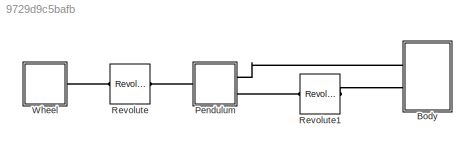
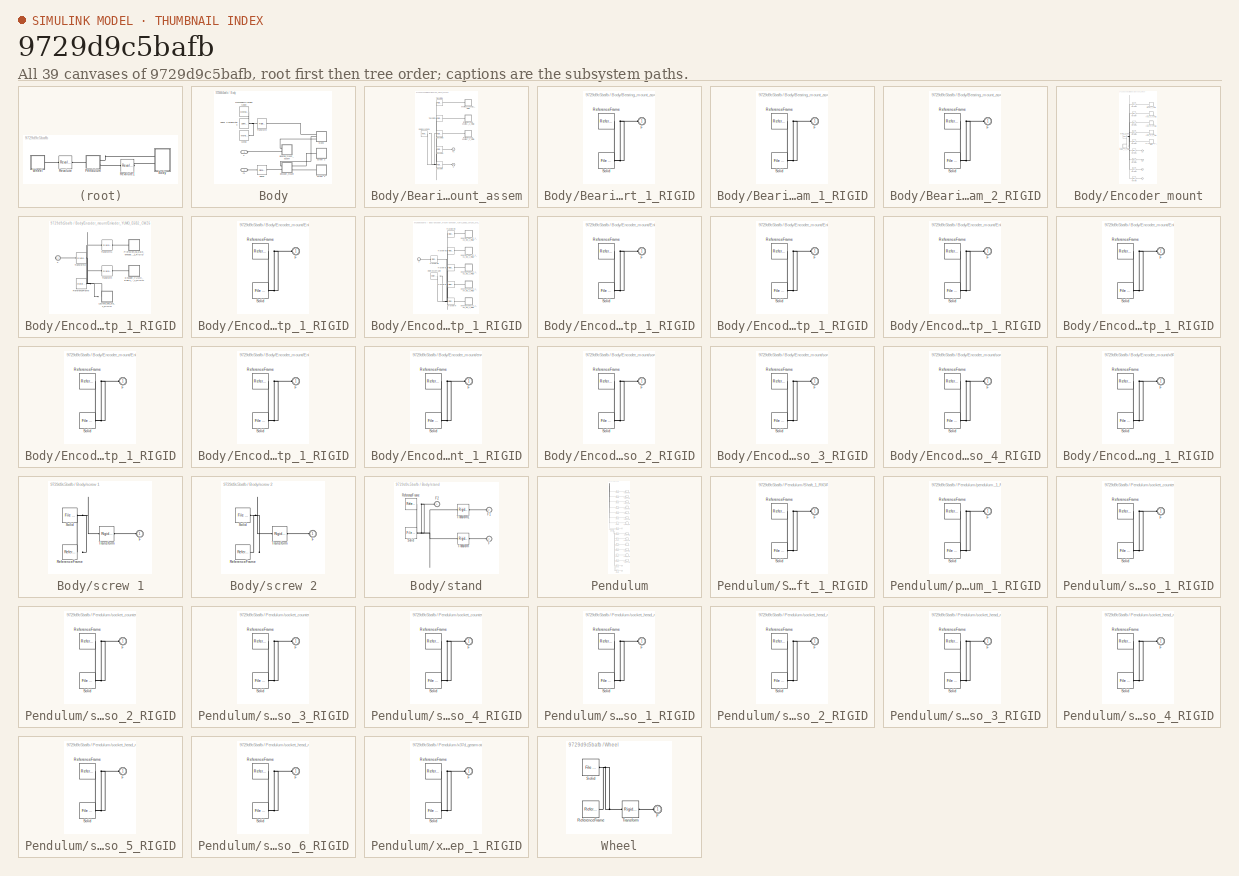
[diagram: thumbnail index - all 39 canvases of the model, root first then tree order]
MODEL slx_9729d9c5bafb
KIND model
CONFIG AbsTol = auto
CONFIG EnableMultiTasking = off
CONFIG FixedStep = auto
CONFIG MaxStep = auto
CONFIG MinStep = auto
CONFIG RelTol = 1e-3
CONFIG SampleTimeConstraint = Unconstrained
CONFIG Solver = VariableStepAuto
CONFIG SolverName = VariableStepAuto
CONFIG StartTime = 0.0
CONFIG StopTime = 10.0
WORKSPACE source: external: MATLAB File  (data not in archive)
BLOCK [SubSystem] Body
  Ports = [0, 0, 0, 0, 0, 2]
  RequestExecContextInheritance = off
BLOCK [SubSystem] Body/Bearing_mount_assem
  Ports = [0, 0, 0, 0, 0, 2]
  RequestExecContextInheritance = off
BLOCK [PMIOPort] Body/Bearing_mount_assem/F
  Port = 2
  Side = Left
BLOCK [PMIOPort] Body/Bearing_mount_assem/F1
  Side = Left
BLOCK [Reference] Body/Bearing_mount_assem/ReferenceFrame  REF=sm_lib/Frames and
Transforms/Reference
Frame
  Ports = [0, 0, 0, 0, 0, 0, 1]
  SourceBlock = sm_lib/Frames and\nTransforms/Reference\nFrame
  SourceProductBaseCode = MS
  SourceType = Reference\nFrame
BLOCK [Reference] Body/Bearing_mount_assem/Transform  REF=sm_lib/Frames and
Transforms/Rigid
Transform
  Ports = [0, 0, 0, 0, 0, 1, 1]
  SourceBlock = sm_lib/Frames and\nTransforms/Rigid\nTransform
  SourceProductBaseCode = MS
  SourceType = Rigid\nTransform
BLOCK [Reference] Body/Bearing_mount_assem/Transform1  REF=sm_lib/Frames and
Transforms/Rigid
Transform
  Ports = [0, 0, 0, 0, 0, 1, 1]
  SourceBlock = sm_lib/Frames and\nTransforms/Rigid\nTransform
  SourceProductBaseCode = MS
  SourceType = Rigid\nTransform
BLOCK [Reference] Body/Bearing_mount_assem/Transform2  REF=sm_lib/Frames and
Transforms/Rigid
Transform
  Ports = [0, 0, 0, 0, 0, 1, 1]
  SourceBlock = sm_lib/Frames and\nTransforms/Rigid\nTransform
  SourceProductBaseCode = MS
  SourceType = Rigid\nTransform
BLOCK [Reference] Body/Bearing_mount_assem/Transform3  REF=sm_lib/Frames and
Transforms/Rigid
Transform
  Ports = [0, 0, 0, 0, 0, 1, 1]
  SourceBlock = sm_lib/Frames and\nTransforms/Rigid\nTransform
  SourceProductBaseCode = MS
  SourceType = Rigid\nTransform
BLOCK [Reference] Body/Bearing_mount_assem/Transform4  REF=sm_lib/Frames and
Transforms/Rigid
Transform
  Ports = [0, 0, 0, 0, 0, 1, 1]
  SourceBlock = sm_lib/Frames and\nTransforms/Rigid\nTransform
  SourceProductBaseCode = MS
  SourceType = Rigid\nTransform
BLOCK [SubSystem] Body/Bearing_mount_assem/bearing_support_1_RIGID
  Ports = [0, 0, 0, 0, 0, 1]
  RequestExecContextInheritance = off
BLOCK [PMIOPort] Body/Bearing_mount_assem/bearing_support_1_RIGID/F
  Side = Left
BLOCK [Reference] Body/Bearing_mount_assem/bearing_support_1_RIGID/ReferenceFrame  REF=sm_lib/Frames and
Transforms/Reference
Frame
  Ports = [0, 0, 0, 0, 0, 0, 1]
  SourceBlock = sm_lib/Frames and\nTransforms/Reference\nFrame
  SourceProductBaseCode = MS
  SourceType = Reference\nFrame
BLOCK [Reference] Body/Bearing_mount_assem/bearing_support_1_RIGID/Solid  REF=sm_lib/Body Elements/File Solid
  Ports = [0, 0, 0, 0, 0, 0, 1]
  SourceBlock = sm_lib/Body Elements/File Solid
  SourceProductBaseCode = MS
  SourceType = File Solid
BLOCK [SubSystem] Body/Bearing_mount_assem/instrument_ball_bearing_68_am_1_RIGID
  Ports = [0, 0, 0, 0, 0, 1]
  RequestExecContextInheritance = off
BLOCK [PMIOPort] Body/Bearing_mount_assem/instrument_ball_bearing_68_am_1_RIGID/F
  Side = Left
BLOCK [Reference] Body/Bearing_mount_assem/instrument_ball_bearing_68_am_1_RIGID/ReferenceFrame  REF=sm_lib/Frames and
Transforms/Reference
Frame
  Ports = [0, 0, 0, 0, 0, 0, 1]
  SourceBlock = sm_lib/Frames and\nTransforms/Reference\nFrame
  SourceProductBaseCode = MS
  SourceType = Reference\nFrame
BLOCK [Reference] Body/Bearing_mount_assem/instrument_ball_bearing_68_am_1_RIGID/Solid  REF=sm_lib/Body Elements/File Solid
  Ports = [0, 0, 0, 0, 0, 0, 1]
  SourceBlock = sm_lib/Body Elements/File Solid
  SourceProductBaseCode = MS
  SourceType = File Solid
BLOCK [SubSystem] Body/Bearing_mount_assem/instrument_ball_bearing_68_am_2_RIGID
  Ports = [0, 0, 0, 0, 0, 1]
  RequestExecContextInheritance = off
BLOCK [PMIOPort] Body/Bearing_mount_assem/instrument_ball_bearing_68_am_2_RIGID/F
  Side = Left
BLOCK [Reference] Body/Bearing_mount_assem/instrument_ball_bearing_68_am_2_RIGID/ReferenceFrame  REF=sm_lib/Frames and
Transforms/Reference
Frame
  Ports = [0, 0, 0, 0, 0, 0, 1]
  SourceBlock = sm_lib/Frames and\nTransforms/Reference\nFrame
  SourceProductBaseCode = MS
  SourceType = Reference\nFrame
BLOCK [Reference] Body/Bearing_mount_assem/instrument_ball_bearing_68_am_2_RIGID/Solid  REF=sm_lib/Body Elements/File Solid
  Ports = [0, 0, 0, 0, 0, 0, 1]
  SourceBlock = sm_lib/Body Elements/File Solid
  SourceProductBaseCode = MS
  SourceType = File Solid
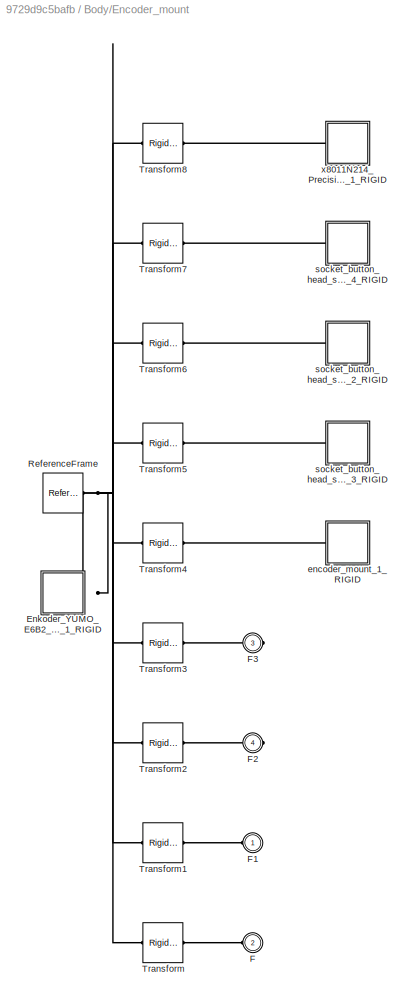
BLOCK [SubSystem] Body/Encoder_mount
  Ports = [0, 0, 0, 0, 0, 2, 2]
  RequestExecContextInheritance = off
BLOCK [SubSystem] Body/Encoder_mount/Enkoder_YUMO_E6B2_CWZ6C_stp_1_RIGID
  Ports = [0, 0, 0, 0, 0, 0, 1]
  RequestExecContextInheritance = off
BLOCK [SubSystem] Body/Encoder_mount/Enkoder_YUMO_E6B2_CWZ6C_stp_1_RIGID/Enkoder_YUMO_E6B2_CWZ6C_stp_1_RIGID
  Ports = [0, 0, 0, 0, 0, 1]
  RequestExecContextInheritance = off
BLOCK [PMIOPort] Body/Encoder_mount/Enkoder_YUMO_E6B2_CWZ6C_stp_1_RIGID/Enkoder_YUMO_E6B2_CWZ6C_stp_1_RIGID/F
  Side = Left
BLOCK [Reference] Body/Encoder_mount/Enkoder_YUMO_E6B2_CWZ6C_stp_1_RIGID/Enkoder_YUMO_E6B2_CWZ6C_stp_1_RIGID/ReferenceFrame  REF=sm_lib/Frames and
Transforms/Reference
Frame
  Ports = [0, 0, 0, 0, 0, 0, 1]
  SourceBlock = sm_lib/Frames and\nTransforms/Reference\nFrame
  SourceProductBaseCode = MS
  SourceType = Reference\nFrame
BLOCK [Reference] Body/Encoder_mount/Enkoder_YUMO_E6B2_CWZ6C_stp_1_RIGID/Enkoder_YUMO_E6B2_CWZ6C_stp_1_RIGID/Solid  REF=sm_lib/Body Elements/File Solid
  Ports = [0, 0, 0, 0, 0, 0, 1]
  SourceBlock = sm_lib/Body Elements/File Solid
  SourceProductBaseCode = MS
  SourceType = File Solid
BLOCK [PMIOPort] Body/Encoder_mount/Enkoder_YUMO_E6B2_CWZ6C_stp_1_RIGID/F
  Side = Right
BLOCK [SubSystem] Body/Encoder_mount/Enkoder_YUMO_E6B2_CWZ6C_stp_1_RIGID/Lozysko_696_stp_1_RIGID
  Ports = [0, 0, 0, 0, 0, 1]
  RequestExecContextInheritance = off
BLOCK [PMIOPort] Body/Encoder_mount/Enkoder_YUMO_E6B2_CWZ6C_stp_1_RIGID/Lozysko_696_stp_1_RIGID/F
  Side = Left
BLOCK [Reference] Body/Encoder_mount/Enkoder_YUMO_E6B2_CWZ6C_stp_1_RIGID/Lozysko_696_stp_1_RIGID/ReferenceFrame  REF=sm_lib/Frames and
Transforms/Reference
Frame
  Ports = [0, 0, 0, 0, 0, 0, 1]
  SourceBlock = sm_lib/Frames and\nTransforms/Reference\nFrame
  SourceProductBaseCode = MS
  SourceType = Reference\nFrame
BLOCK [Reference] Body/Encoder_mount/Enkoder_YUMO_E6B2_CWZ6C_stp_1_RIGID/Lozysko_696_stp_1_RIGID/Transform  REF=sm_lib/Frames and
Transforms/Rigid
Transform
  Ports = [0, 0, 0, 0, 0, 1, 1]
  SourceBlock = sm_lib/Frames and\nTransforms/Rigid\nTransform
  SourceProductBaseCode = MS
  SourceType = Rigid\nTransform
BLOCK [Reference] Body/Encoder_mount/Enkoder_YUMO_E6B2_CWZ6C_stp_1_RIGID/Lozysko_696_stp_1_RIGID/Transform1  REF=sm_lib/Frames and
Transforms/Rigid
Transform
  Ports = [0, 0, 0, 0, 0, 1, 1]
  SourceBlock = sm_lib/Frames and\nTransforms/Rigid\nTransform
  SourceProductBaseCode = MS
  SourceType = Rigid\nTransform
BLOCK [Reference] Body/Encoder_mount/Enkoder_YUMO_E6B2_CWZ6C_stp_1_RIGID/Lozysko_696_stp_1_RIGID/Transform2  REF=sm_lib/Frames and
Transforms/Rigid
Transform
  Ports = [0, 0, 0, 0, 0, 1, 1]
  SourceBlock = sm_lib/Frames and\nTransforms/Rigid\nTransform
  SourceProductBaseCode = MS
  SourceType = Rigid\nTransform
BLOCK [Reference] Body/Encoder_mount/Enkoder_YUMO_E6B2_CWZ6C_stp_1_RIGID/Lozysko_696_stp_1_RIGID/Transform3  REF=sm_lib/Frames and
Transforms/Rigid
Transform
  Ports = [0, 0, 0, 0, 0, 1, 1]
  SourceBlock = sm_lib/Frames and\nTransforms/Rigid\nTransform
  SourceProductBaseCode = MS
  SourceType = Rigid\nTransform
BLOCK [Reference] Body/Encoder_mount/Enkoder_YUMO_E6B2_CWZ6C_stp_1_RIGID/Lozysko_696_stp_1_RIGID/Transform4  REF=sm_lib/Frames and
Transforms/Rigid
Transform
  Ports = [0, 0, 0, 0, 0, 1, 1]
  SourceBlock = sm_lib/Frames and\nTransforms/Rigid\nTransform
  SourceProductBaseCode = MS
  SourceType = Rigid\nTransform
BLOCK [Reference] Body/Encoder_mount/Enkoder_YUMO_E6B2_CWZ6C_stp_1_RIGID/Lozysko_696_stp_1_RIGID/Transform5  REF=sm_lib/Frames and
Transforms/Rigid
Transform
  Ports = [0, 0, 0, 0, 0, 1, 1]
  SourceBlock = sm_lib/Frames and\nTransforms/Rigid\nTransform
  SourceProductBaseCode = MS
  SourceType = Rigid\nTransform
BLOCK [SubSystem] Body/Encoder_mount/Enkoder_YUMO_E6B2_CWZ6C_stp_1_RIGID/Lozysko_696_stp_1_RIGID/bearing_696_zz_1_01_stp_1_RIGID
  Ports = [0, 0, 0, 0, 0, 1]
  RequestExecContextInheritance = off
BLOCK [PMIOPort] Body/Encoder_mount/Enkoder_YUMO_E6B2_CWZ6C_stp_1_RIGID/Lozysko_696_stp_1_RIGID/bearing_696_zz_1_01_stp_1_RIGID/F
  Side = Left
BLOCK [Reference] Body/Encoder_mount/Enkoder_YUMO_E6B2_CWZ6C_stp_1_RIGID/Lozysko_696_stp_1_RIGID/bearing_696_zz_1_01_stp_1_RIGID/ReferenceFrame  REF=sm_lib/Frames and
Transforms/Reference
Frame
  Ports = [0, 0, 0, 0, 0, 0, 1]
  SourceBlock = sm_lib/Frames and\nTransforms/Reference\nFrame
  SourceProductBaseCode = MS
  SourceType = Reference\nFrame
BLOCK [Reference] Body/Encoder_mount/Enkoder_YUMO_E6B2_CWZ6C_stp_1_RIGID/Lozysko_696_stp_1_RIGID/bearing_696_zz_1_01_stp_1_RIGID/Solid  REF=sm_lib/Body Elements/File Solid
  Ports = [0, 0, 0, 0, 0, 0, 1]
  SourceBlock = sm_lib/Body Elements/File Solid
  SourceProductBaseCode = MS
  SourceType = File Solid
BLOCK [SubSystem] Body/Encoder_mount/Enkoder_YUMO_E6B2_CWZ6C_stp_1_RIGID/Lozysko_696_stp_1_RIGID/bearing_696_zz_1_02_stp_1_RIGID
  Ports = [0, 0, 0, 0, 0, 1]
  RequestExecContextInheritance = off
BLOCK [PMIOPort] Body/Encoder_mount/Enkoder_YUMO_E6B2_CWZ6C_stp_1_RIGID/Lozysko_696_stp_1_RIGID/bearing_696_zz_1_02_stp_1_RIGID/F
  Side = Left
BLOCK [Reference] Body/Encoder_mount/Enkoder_YUMO_E6B2_CWZ6C_stp_1_RIGID/Lozysko_696_stp_1_RIGID/bearing_696_zz_1_02_stp_1_RIGID/ReferenceFrame  REF=sm_lib/Frames and
Transforms/Reference
Frame
  Ports = [0, 0, 0, 0, 0, 0, 1]
  SourceBlock = sm_lib/Frames and\nTransforms/Reference\nFrame
  SourceProductBaseCode = MS
  SourceType = Reference\nFrame
BLOCK [Reference] Body/Encoder_mount/Enkoder_YUMO_E6B2_CWZ6C_stp_1_RIGID/Lozysko_696_stp_1_RIGID/bearing_696_zz_1_02_stp_1_RIGID/Solid  REF=sm_lib/Body Elements/File Solid
  Ports = [0, 0, 0, 0, 0, 0, 1]
  SourceBlock = sm_lib/Body Elements/File Solid
  SourceProductBaseCode = MS
  SourceType = File Solid
BLOCK [SubSystem] Body/Encoder_mount/Enkoder_YUMO_E6B2_CWZ6C_stp_1_RIGID/Lozysko_696_stp_1_RIGID/bearing_696_zz_1_03_stp_1_RIGID
  Ports = [0, 0, 0, 0, 0, 1]
  RequestExecContextInheritance = off
BLOCK [PMIOPort] Body/Encoder_mount/Enkoder_YUMO_E6B2_CWZ6C_stp_1_RIGID/Lozysko_696_stp_1_RIGID/bearing_696_zz_1_03_stp_1_RIGID/F
  Side = Left
BLOCK [Reference] Body/Encoder_mount/Enkoder_YUMO_E6B2_CWZ6C_stp_1_RIGID/Lozysko_696_stp_1_RIGID/bearing_696_zz_1_03_stp_1_RIGID/ReferenceFrame  REF=sm_lib/Frames and
Transforms/Reference
Frame
  Ports = [0, 0, 0, 0, 0, 0, 1]
  SourceBlock = sm_lib/Frames and\nTransforms/Reference\nFrame
  SourceProductBaseCode = MS
  SourceType = Reference\nFrame
BLOCK [Reference] Body/Encoder_mount/Enkoder_YUMO_E6B2_CWZ6C_stp_1_RIGID/Lozysko_696_stp_1_RIGID/bearing_696_zz_1_03_stp_1_RIGID/Solid  REF=sm_lib/Body Elements/File Solid
  Ports = [0, 0, 0, 0, 0, 0, 1]
  SourceBlock = sm_lib/Body Elements/File Solid
  SourceProductBaseCode = MS
  SourceType = File Solid
BLOCK [SubSystem] Body/Encoder_mount/Enkoder_YUMO_E6B2_CWZ6C_stp_1_RIGID/Lozysko_696_stp_1_RIGID/bearing_696_zz_1_04_stp_1_RIGID
  Ports = [0, 0, 0, 0, 0, 1]
  RequestExecContextInheritance = off
BLOCK [PMIOPort] Body/Encoder_mount/Enkoder_YUMO_E6B2_CWZ6C_stp_1_RIGID/Lozysko_696_stp_1_RIGID/bearing_696_zz_1_04_stp_1_RIGID/F
  Side = Left
BLOCK [Reference] Body/Encoder_mount/Enkoder_YUMO_E6B2_CWZ6C_stp_1_RIGID/Lozysko_696_stp_1_RIGID/bearing_696_zz_1_04_stp_1_RIGID/ReferenceFrame  REF=sm_lib/Frames and
Transforms/Reference
Frame
  Ports = [0, 0, 0, 0, 0, 0, 1]
  SourceBlock = sm_lib/Frames and\nTransforms/Reference\nFrame
  SourceProductBaseCode = MS
  SourceType = Reference\nFrame
BLOCK [Reference] Body/Encoder_mount/Enkoder_YUMO_E6B2_CWZ6C_stp_1_RIGID/Lozysko_696_stp_1_RIGID/bearing_696_zz_1_04_stp_1_RIGID/Solid  REF=sm_lib/Body Elements/File Solid
  Ports = [0, 0, 0, 0, 0, 0, 1]
  SourceBlock = sm_lib/Body Elements/File Solid
  SourceProductBaseCode = MS
  SourceType = File Solid
BLOCK [SubSystem] Body/Encoder_mount/Enkoder_YUMO_E6B2_CWZ6C_stp_1_RIGID/Lozysko_696_stp_1_RIGID/bearing_696_zz_1_05_stp_1_RIGID
  Ports = [0, 0, 0, 0, 0, 1]
  RequestExecContextInheritance = off
BLOCK [PMIOPort] Body/Encoder_mount/Enkoder_YUMO_E6B2_CWZ6C_stp_1_RIGID/Lozysko_696_stp_1_RIGID/bearing_696_zz_1_05_stp_1_RIGID/F
  Side = Left
BLOCK [Reference] Body/Encoder_mount/Enkoder_YUMO_E6B2_CWZ6C_stp_1_RIGID/Lozysko_696_stp_1_RIGID/bearing_696_zz_1_05_stp_1_RIGID/ReferenceFrame  REF=sm_lib/Frames and
Transforms/Reference
Frame
  Ports = [0, 0, 0, 0, 0, 0, 1]
  SourceBlock = sm_lib/Frames and\nTransforms/Reference\nFrame
  SourceProductBaseCode = MS
  SourceType = Reference\nFrame
BLOCK [Reference] Body/Encoder_mount/Enkoder_YUMO_E6B2_CWZ6C_stp_1_RIGID/Lozysko_696_stp_1_RIGID/bearing_696_zz_1_05_stp_1_RIGID/Solid  REF=sm_lib/Body Elements/File Solid
  Ports = [0, 0, 0, 0, 0, 0, 1]
  SourceBlock = sm_lib/Body Elements/File Solid
  SourceProductBaseCode = MS
  SourceType = File Solid
BLOCK [SubSystem] Body/Encoder_mount/Enkoder_YUMO_E6B2_CWZ6C_stp_1_RIGID/Pierscien_na_wale_enkodera_YUMO_stp_1_RIGID
  Ports = [0, 0, 0, 0, 0, 1]
  RequestExecContextInheritance = off
BLOCK [PMIOPort] Body/Encoder_mount/Enkoder_YUMO_E6B2_CWZ6C_stp_1_RIGID/Pierscien_na_wale_enkodera_YUMO_stp_1_RIGID/F
  Side = Left
BLOCK [Reference] Body/Encoder_mount/Enkoder_YUMO_E6B2_CWZ6C_stp_1_RIGID/Pierscien_na_wale_enkodera_YUMO_stp_1_RIGID/ReferenceFrame  REF=sm_lib/Frames and
Transforms/Reference
Frame
  Ports = [0, 0, 0, 0, 0, 0, 1]
  SourceBlock = sm_lib/Frames and\nTransforms/Reference\nFrame
  SourceProductBaseCode = MS
  SourceType = Reference\nFrame
BLOCK [Reference] Body/Encoder_mount/Enkoder_YUMO_E6B2_CWZ6C_stp_1_RIGID/Pierscien_na_wale_enkodera_YUMO_stp_1_RIGID/Solid  REF=sm_lib/Body Elements/File Solid
  Ports = [0, 0, 0, 0, 0, 0, 1]
  SourceBlock = sm_lib/Body Elements/File Solid
  SourceProductBaseCode = MS
  SourceType = File Solid
BLOCK [Reference] Body/Encoder_mount/Enkoder_YUMO_E6B2_CWZ6C_stp_1_RIGID/ReferenceFrame  REF=sm_lib/Frames and
Transforms/Reference
Frame
  Ports = [0, 0, 0, 0, 0, 0, 1]
  SourceBlock = sm_lib/Frames and\nTransforms/Reference\nFrame
  SourceProductBaseCode = MS
  SourceType = Reference\nFrame
BLOCK [Reference] Body/Encoder_mount/Enkoder_YUMO_E6B2_CWZ6C_stp_1_RIGID/Transform  REF=sm_lib/Frames and
Transforms/Rigid
Transform
  Ports = [0, 0, 0, 0, 0, 1, 1]
  SourceBlock = sm_lib/Frames and\nTransforms/Rigid\nTransform
  SourceProductBaseCode = MS
  SourceType = Rigid\nTransform
BLOCK [Reference] Body/Encoder_mount/Enkoder_YUMO_E6B2_CWZ6C_stp_1_RIGID/Transform1  REF=sm_lib/Frames and
Transforms/Rigid
Transform
  Ports = [0, 0, 0, 0, 0, 1, 1]
  SourceBlock = sm_lib/Frames and\nTransforms/Rigid\nTransform
  SourceProductBaseCode = MS
  SourceType = Rigid\nTransform
BLOCK [Reference] Body/Encoder_mount/Enkoder_YUMO_E6B2_CWZ6C_stp_1_RIGID/Transform2  REF=sm_lib/Frames and
Transforms/Rigid
Transform
  Ports = [0, 0, 0, 0, 0, 1, 1]
  SourceBlock = sm_lib/Frames and\nTransforms/Rigid\nTransform
  SourceProductBaseCode = MS
  SourceType = Rigid\nTransform
BLOCK [PMIOPort] Body/Encoder_mount/F
  Port = 2
  Side = Left
BLOCK [PMIOPort] Body/Encoder_mount/F1
  Side = Left
BLOCK [PMIOPort] Body/Encoder_mount/F2
  Port = 4
  Side = Right
BLOCK [PMIOPort] Body/Encoder_mount/F3
  Port = 3
  Side = Right
BLOCK [Reference] Body/Encoder_mount/ReferenceFrame  REF=sm_lib/Frames and
Transforms/Reference
Frame
  Ports = [0, 0, 0, 0, 0, 0, 1]
  SourceBlock = sm_lib/Frames and\nTransforms/Reference\nFrame
  SourceProductBaseCode = MS
  SourceType = Reference\nFrame
BLOCK [Reference] Body/Encoder_mount/Transform  REF=sm_lib/Frames and
Transforms/Rigid
Transform
  Ports = [0, 0, 0, 0, 0, 1, 1]
  SourceBlock = sm_lib/Frames and\nTransforms/Rigid\nTransform
  SourceProductBaseCode = MS
  SourceType = Rigid\nTransform
BLOCK [Reference] Body/Encoder_mount/Transform1  REF=sm_lib/Frames and
Transforms/Rigid
Transform
  Ports = [0, 0, 0, 0, 0, 1, 1]
  SourceBlock = sm_lib/Frames and\nTransforms/Rigid\nTransform
  SourceProductBaseCode = MS
  SourceType = Rigid\nTransform
BLOCK [Reference] Body/Encoder_mount/Transform2  REF=sm_lib/Frames and
Transforms/Rigid
Transform
  Ports = [0, 0, 0, 0, 0, 1, 1]
  SourceBlock = sm_lib/Frames and\nTransforms/Rigid\nTransform
  SourceProductBaseCode = MS
  SourceType = Rigid\nTransform
BLOCK [Reference] Body/Encoder_mount/Transform3  REF=sm_lib/Frames and
Transforms/Rigid
Transform
  Ports = [0, 0, 0, 0, 0, 1, 1]
  SourceBlock = sm_lib/Frames and\nTransforms/Rigid\nTransform
  SourceProductBaseCode = MS
  SourceType = Rigid\nTransform
BLOCK [Reference] Body/Encoder_mount/Transform4  REF=sm_lib/Frames and
Transforms/Rigid
Transform
  Ports = [0, 0, 0, 0, 0, 1, 1]
  SourceBlock = sm_lib/Frames and\nTransforms/Rigid\nTransform
  SourceProductBaseCode = MS
  SourceType = Rigid\nTransform
BLOCK [Reference] Body/Encoder_mount/Transform5  REF=sm_lib/Frames and
Transforms/Rigid
Transform
  Ports = [0, 0, 0, 0, 0, 1, 1]
  SourceBlock = sm_lib/Frames and\nTransforms/Rigid\nTransform
  SourceProductBaseCode = MS
  SourceType = Rigid\nTransform
BLOCK [Reference] Body/Encoder_mount/Transform6  REF=sm_lib/Frames and
Transforms/Rigid
Transform
  Ports = [0, 0, 0, 0, 0, 1, 1]
  SourceBlock = sm_lib/Frames and\nTransforms/Rigid\nTransform
  SourceProductBaseCode = MS
  SourceType = Rigid\nTransform
BLOCK [Reference] Body/Encoder_mount/Transform7  REF=sm_lib/Frames and
Transforms/Rigid
Transform
  Ports = [0, 0, 0, 0, 0, 1, 1]
  SourceBlock = sm_lib/Frames and\nTransforms/Rigid\nTransform
  SourceProductBaseCode = MS
  SourceType = Rigid\nTransform
BLOCK [Reference] Body/Encoder_mount/Transform8  REF=sm_lib/Frames and
Transforms/Rigid
Transform
  Ports = [0, 0, 0, 0, 0, 1, 1]
  SourceBlock = sm_lib/Frames and\nTransforms/Rigid\nTransform
  SourceProductBaseCode = MS
  SourceType = Rigid\nTransform
BLOCK [SubSystem] Body/Encoder_mount/encoder_mount_1_RIGID
  Ports = [0, 0, 0, 0, 0, 1]
  RequestExecContextInheritance = off
BLOCK [PMIOPort] Body/Encoder_mount/encoder_mount_1_RIGID/F
  Side = Left
BLOCK [Reference] Body/Encoder_mount/encoder_mount_1_RIGID/ReferenceFrame  REF=sm_lib/Frames and
Transforms/Reference
Frame
  Ports = [0, 0, 0, 0, 0, 0, 1]
  SourceBlock = sm_lib/Frames and\nTransforms/Reference\nFrame
  SourceProductBaseCode = MS
  SourceType = Reference\nFrame
BLOCK [Reference] Body/Encoder_mount/encoder_mount_1_RIGID/Solid  REF=sm_lib/Body Elements/File Solid
  Ports = [0, 0, 0, 0, 0, 0, 1]
  SourceBlock = sm_lib/Body Elements/File Solid
  SourceProductBaseCode = MS
  SourceType = File Solid
BLOCK [SubSystem] Body/Encoder_mount/socket_button_head_screw_iso_2_RIGID
  Ports = [0, 0, 0, 0, 0, 1]
  RequestExecContextInheritance = off
BLOCK [PMIOPort] Body/Encoder_mount/socket_button_head_screw_iso_2_RIGID/F
  Side = Left
BLOCK [Reference] Body/Encoder_mount/socket_button_head_screw_iso_2_RIGID/ReferenceFrame  REF=sm_lib/Frames and
Transforms/Reference
Frame
  Ports = [0, 0, 0, 0, 0, 0, 1]
  SourceBlock = sm_lib/Frames and\nTransforms/Reference\nFrame
  SourceProductBaseCode = MS
  SourceType = Reference\nFrame
BLOCK [Reference] Body/Encoder_mount/socket_button_head_screw_iso_2_RIGID/Solid  REF=sm_lib/Body Elements/File Solid
  Ports = [0, 0, 0, 0, 0, 0, 1]
  SourceBlock = sm_lib/Body Elements/File Solid
  SourceProductBaseCode = MS
  SourceType = File Solid
BLOCK [SubSystem] Body/Encoder_mount/socket_button_head_screw_iso_3_RIGID
  Ports = [0, 0, 0, 0, 0, 1]
  RequestExecContextInheritance = off
BLOCK [PMIOPort] Body/Encoder_mount/socket_button_head_screw_iso_3_RIGID/F
  Side = Left
BLOCK [Reference] Body/Encoder_mount/socket_button_head_screw_iso_3_RIGID/ReferenceFrame  REF=sm_lib/Frames and
Transforms/Reference
Frame
  Ports = [0, 0, 0, 0, 0, 0, 1]
  SourceBlock = sm_lib/Frames and\nTransforms/Reference\nFrame
  SourceProductBaseCode = MS
  SourceType = Reference\nFrame
BLOCK [Reference] Body/Encoder_mount/socket_button_head_screw_iso_3_RIGID/Solid  REF=sm_lib/Body Elements/File Solid
  Ports = [0, 0, 0, 0, 0, 0, 1]
  SourceBlock = sm_lib/Body Elements/File Solid
  SourceProductBaseCode = MS
  SourceType = File Solid
BLOCK [SubSystem] Body/Encoder_mount/socket_button_head_screw_iso_4_RIGID
  Ports = [0, 0, 0, 0, 0, 1]
  RequestExecContextInheritance = off
BLOCK [PMIOPort] Body/Encoder_mount/socket_button_head_screw_iso_4_RIGID/F
  Side = Left
BLOCK [Reference] Body/Encoder_mount/socket_button_head_screw_iso_4_RIGID/ReferenceFrame  REF=sm_lib/Frames and
Transforms/Reference
Frame
  Ports = [0, 0, 0, 0, 0, 0, 1]
  SourceBlock = sm_lib/Frames and\nTransforms/Reference\nFrame
  SourceProductBaseCode = MS
  SourceType = Reference\nFrame
BLOCK [Reference] Body/Encoder_mount/socket_button_head_screw_iso_4_RIGID/Solid  REF=sm_lib/Body Elements/File Solid
  Ports = [0, 0, 0, 0, 0, 0, 1]
  SourceBlock = sm_lib/Body Elements/File Solid
  SourceProductBaseCode = MS
  SourceType = File Solid
BLOCK [SubSystem] Body/Encoder_mount/x8011N214_Precision_Flexible_Shaft_Coupling_1_RIGID
  Ports = [0, 0, 0, 0, 0, 1]
  RequestExecContextInheritance = off
BLOCK [PMIOPort] Body/Encoder_mount/x8011N214_Precision_Flexible_Shaft_Coupling_1_RIGID/F
  Side = Left
BLOCK [Reference] Body/Encoder_mount/x8011N214_Precision_Flexible_Shaft_Coupling_1_RIGID/ReferenceFrame  REF=sm_lib/Frames and
Transforms/Reference
Frame
  Ports = [0, 0, 0, 0, 0, 0, 1]
  SourceBlock = sm_lib/Frames and\nTransforms/Reference\nFrame
  SourceProductBaseCode = MS
  SourceType = Reference\nFrame
BLOCK [Reference] Body/Encoder_mount/x8011N214_Precision_Flexible_Shaft_Coupling_1_RIGID/Solid  REF=sm_lib/Body Elements/File Solid
  Ports = [0, 0, 0, 0, 0, 0, 1]
  SourceBlock = sm_lib/Body Elements/File Solid
  SourceProductBaseCode = MS
  SourceType = File Solid
BLOCK [PMIOPort] Body/F
  Port = 2
  Side = Left
BLOCK [PMIOPort] Body/F1
  Side = Left
BLOCK [Reference] Body/MechanismConfiguration  REF=sm_lib/Utilities/Mechanism
Configuration
  Ports = [0, 0, 0, 0, 0, 0, 1]
  SourceBlock = sm_lib/Utilities/Mechanism\nConfiguration
  SourceProductBaseCode = MS
  SourceType = Mechanism\nConfiguration
BLOCK [Reference] Body/Planar  REF=sm_lib/Joints/Planar Joint
  Ports = [0, 0, 0, 0, 0, 1, 1]
  SourceBlock = sm_lib/Joints/Planar Joint
  SourceProductBaseCode = MS
  SourceType = Planar Joint
BLOCK [Reference] Body/Solver Configuration  REF=nesl_utility/Solver
Configuration
  Ports = [0, 0, 0, 0, 0, 0, 1]
  SourceBlock = nesl_utility/Solver\nConfiguration
  SourceProductBaseCode = SS
  SourceType = Solver\nConfiguration
BLOCK [Reference] Body/Transform  REF=sm_lib/Frames and
Transforms/Rigid
Transform
  Ports = [0, 0, 0, 0, 0, 1, 1]
  SourceBlock = sm_lib/Frames and\nTransforms/Rigid\nTransform
  SourceProductBaseCode = MS
  SourceType = Rigid\nTransform
BLOCK [Reference] Body/World  REF=sm_lib/Frames and
Transforms/World Frame
  Ports = [0, 0, 0, 0, 0, 0, 1]
  SourceBlock = sm_lib/Frames and\nTransforms/World Frame
  SourceProductBaseCode = MS
  SourceType = World Frame
BLOCK [SubSystem] Body/screw 1
  Ports = [0, 0, 0, 0, 0, 1]
  RequestExecContextInheritance = off
BLOCK [PMIOPort] Body/screw 1/F
  Side = Left
BLOCK [Reference] Body/screw 1/ReferenceFrame  REF=sm_lib/Frames and
Transforms/Reference
Frame
  Ports = [0, 0, 0, 0, 0, 0, 1]
  SourceBlock = sm_lib/Frames and\nTransforms/Reference\nFrame
  SourceProductBaseCode = MS
  SourceType = Reference\nFrame
BLOCK [Reference] Body/screw 1/Solid  REF=sm_lib/Body Elements/File Solid
  Ports = [0, 0, 0, 0, 0, 0, 1]
  SourceBlock = sm_lib/Body Elements/File Solid
  SourceProductBaseCode = MS
  SourceType = File Solid
BLOCK [Reference] Body/screw 1/Transform  REF=sm_lib/Frames and
Transforms/Rigid
Transform
  Ports = [0, 0, 0, 0, 0, 1, 1]
  SourceBlock = sm_lib/Frames and\nTransforms/Rigid\nTransform
  SourceProductBaseCode = MS
  SourceType = Rigid\nTransform
BLOCK [SubSystem] Body/screw 2
  Ports = [0, 0, 0, 0, 0, 1]
  RequestExecContextInheritance = off
BLOCK [PMIOPort] Body/screw 2/F
  Side = Left
BLOCK [Reference] Body/screw 2/ReferenceFrame  REF=sm_lib/Frames and
Transforms/Reference
Frame
  Ports = [0, 0, 0, 0, 0, 0, 1]
  SourceBlock = sm_lib/Frames and\nTransforms/Reference\nFrame
  SourceProductBaseCode = MS
  SourceType = Reference\nFrame
BLOCK [Reference] Body/screw 2/Solid  REF=sm_lib/Body Elements/File Solid
  Ports = [0, 0, 0, 0, 0, 0, 1]
  SourceBlock = sm_lib/Body Elements/File Solid
  SourceProductBaseCode = MS
  SourceType = File Solid
BLOCK [Reference] Body/screw 2/Transform  REF=sm_lib/Frames and
Transforms/Rigid
Transform
  Ports = [0, 0, 0, 0, 0, 1, 1]
  SourceBlock = sm_lib/Frames and\nTransforms/Rigid\nTransform
  SourceProductBaseCode = MS
  SourceType = Rigid\nTransform
BLOCK [SubSystem] Body/stand
  Ports = [0, 0, 0, 0, 0, 3]
  RequestExecContextInheritance = off
BLOCK [PMIOPort] Body/stand/F
  Port = 3
  Side = Left
BLOCK [PMIOPort] Body/stand/F1
  Port = 2
  Side = Left
BLOCK [PMIOPort] Body/stand/F2
  Side = Left
BLOCK [Reference] Body/stand/ReferenceFrame  REF=sm_lib/Frames and
Transforms/Reference
Frame
  Ports = [0, 0, 0, 0, 0, 0, 1]
  SourceBlock = sm_lib/Frames and\nTransforms/Reference\nFrame
  SourceProductBaseCode = MS
  SourceType = Reference\nFrame
BLOCK [Reference] Body/stand/Solid  REF=sm_lib/Body Elements/File Solid
  Ports = [0, 0, 0, 0, 0, 0, 1]
  SourceBlock = sm_lib/Body Elements/File Solid
  SourceProductBaseCode = MS
  SourceType = File Solid
BLOCK [Reference] Body/stand/Transform  REF=sm_lib/Frames and
Transforms/Rigid
Transform
  Ports = [0, 0, 0, 0, 0, 1, 1]
  SourceBlock = sm_lib/Frames and\nTransforms/Rigid\nTransform
  SourceProductBaseCode = MS
  SourceType = Rigid\nTransform
BLOCK [Reference] Body/stand/Transform1  REF=sm_lib/Frames and
Transforms/Rigid
Transform
  Ports = [0, 0, 0, 0, 0, 1, 1]
  SourceBlock = sm_lib/Frames and\nTransforms/Rigid\nTransform
  SourceProductBaseCode = MS
  SourceType = Rigid\nTransform
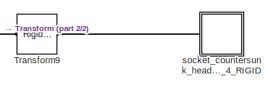
[diagram: Pendulum - part 1/2, top center region]
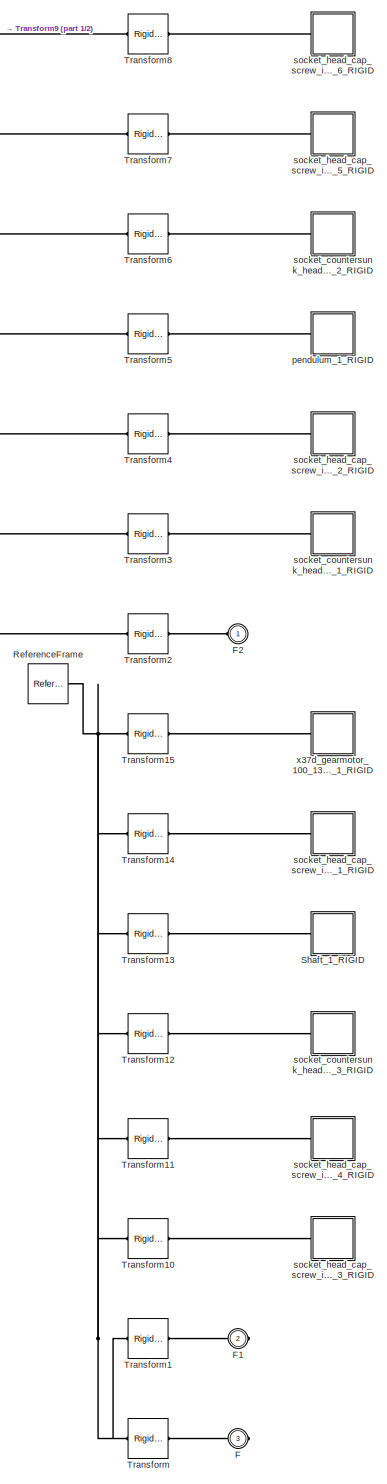
[diagram: Pendulum - part 2/2, most of the canvas]
BLOCK [SubSystem] Pendulum
  Ports = [0, 0, 0, 0, 0, 1, 2]
  RequestExecContextInheritance = off
BLOCK [PMIOPort] Pendulum/F
  Port = 3
  Side = Right
BLOCK [PMIOPort] Pendulum/F1
  Port = 2
  Side = Right
BLOCK [PMIOPort] Pendulum/F2
  Side = Left
BLOCK [Reference] Pendulum/ReferenceFrame  REF=sm_lib/Frames and
Transforms/Reference
Frame
  Ports = [0, 0, 0, 0, 0, 0, 1]
  SourceBlock = sm_lib/Frames and\nTransforms/Reference\nFrame
  SourceProductBaseCode = MS
  SourceType = Reference\nFrame
BLOCK [SubSystem] Pendulum/Shaft_1_RIGID
  Ports = [0, 0, 0, 0, 0, 1]
  RequestExecContextInheritance = off
BLOCK [PMIOPort] Pendulum/Shaft_1_RIGID/F
  Side = Left
BLOCK [Reference] Pendulum/Shaft_1_RIGID/ReferenceFrame  REF=sm_lib/Frames and
Transforms/Reference
Frame
  Ports = [0, 0, 0, 0, 0, 0, 1]
  SourceBlock = sm_lib/Frames and\nTransforms/Reference\nFrame
  SourceProductBaseCode = MS
  SourceType = Reference\nFrame
BLOCK [Reference] Pendulum/Shaft_1_RIGID/Solid  REF=sm_lib/Body Elements/File Solid
  Ports = [0, 0, 0, 0, 0, 0, 1]
  SourceBlock = sm_lib/Body Elements/File Solid
  SourceProductBaseCode = MS
  SourceType = File Solid
BLOCK [Reference] Pendulum/Transform  REF=sm_lib/Frames and
Transforms/Rigid
Transform
  Ports = [0, 0, 0, 0, 0, 1, 1]
  SourceBlock = sm_lib/Frames and\nTransforms/Rigid\nTransform
  SourceProductBaseCode = MS
  SourceType = Rigid\nTransform
BLOCK [Reference] Pendulum/Transform1  REF=sm_lib/Frames and
Transforms/Rigid
Transform
  Ports = [0, 0, 0, 0, 0, 1, 1]
  SourceBlock = sm_lib/Frames and\nTransforms/Rigid\nTransform
  SourceProductBaseCode = MS
  SourceType = Rigid\nTransform
BLOCK [Reference] Pendulum/Transform10  REF=sm_lib/Frames and
Transforms/Rigid
Transform
  Ports = [0, 0, 0, 0, 0, 1, 1]
  SourceBlock = sm_lib/Frames and\nTransforms/Rigid\nTransform
  SourceProductBaseCode = MS
  SourceType = Rigid\nTransform
BLOCK [Reference] Pendulum/Transform11  REF=sm_lib/Frames and
Transforms/Rigid
Transform
  Ports = [0, 0, 0, 0, 0, 1, 1]
  SourceBlock = sm_lib/Frames and\nTransforms/Rigid\nTransform
  SourceProductBaseCode = MS
  SourceType = Rigid\nTransform
BLOCK [Reference] Pendulum/Transform12  REF=sm_lib/Frames and
Transforms/Rigid
Transform
  Ports = [0, 0, 0, 0, 0, 1, 1]
  SourceBlock = sm_lib/Frames and\nTransforms/Rigid\nTransform
  SourceProductBaseCode = MS
  SourceType = Rigid\nTransform
BLOCK [Reference] Pendulum/Transform13  REF=sm_lib/Frames and
Transforms/Rigid
Transform
  Ports = [0, 0, 0, 0, 0, 1, 1]
  SourceBlock = sm_lib/Frames and\nTransforms/Rigid\nTransform
  SourceProductBaseCode = MS
  SourceType = Rigid\nTransform
BLOCK [Reference] Pendulum/Transform14  REF=sm_lib/Frames and
Transforms/Rigid
Transform
  Ports = [0, 0, 0, 0, 0, 1, 1]
  SourceBlock = sm_lib/Frames and\nTransforms/Rigid\nTransform
  SourceProductBaseCode = MS
  SourceType = Rigid\nTransform
BLOCK [Reference] Pendulum/Transform15  REF=sm_lib/Frames and
Transforms/Rigid
Transform
  Ports = [0, 0, 0, 0, 0, 1, 1]
  SourceBlock = sm_lib/Frames and\nTransforms/Rigid\nTransform
  SourceProductBaseCode = MS
  SourceType = Rigid\nTransform
BLOCK [Reference] Pendulum/Transform2  REF=sm_lib/Frames and
Transforms/Rigid
Transform
  Ports = [0, 0, 0, 0, 0, 1, 1]
  SourceBlock = sm_lib/Frames and\nTransforms/Rigid\nTransform
  SourceProductBaseCode = MS
  SourceType = Rigid\nTransform
BLOCK [Reference] Pendulum/Transform3  REF=sm_lib/Frames and
Transforms/Rigid
Transform
  Ports = [0, 0, 0, 0, 0, 1, 1]
  SourceBlock = sm_lib/Frames and\nTransforms/Rigid\nTransform
  SourceProductBaseCode = MS
  SourceType = Rigid\nTransform
BLOCK [Reference] Pendulum/Transform4  REF=sm_lib/Frames and
Transforms/Rigid
Transform
  Ports = [0, 0, 0, 0, 0, 1, 1]
  SourceBlock = sm_lib/Frames and\nTransforms/Rigid\nTransform
  SourceProductBaseCode = MS
  SourceType = Rigid\nTransform
BLOCK [Reference] Pendulum/Transform5  REF=sm_lib/Frames and
Transforms/Rigid
Transform
  Ports = [0, 0, 0, 0, 0, 1, 1]
  SourceBlock = sm_lib/Frames and\nTransforms/Rigid\nTransform
  SourceProductBaseCode = MS
  SourceType = Rigid\nTransform
BLOCK [Reference] Pendulum/Transform6  REF=sm_lib/Frames and
Transforms/Rigid
Transform
  Ports = [0, 0, 0, 0, 0, 1, 1]
  SourceBlock = sm_lib/Frames and\nTransforms/Rigid\nTransform
  SourceProductBaseCode = MS
  SourceType = Rigid\nTransform
BLOCK [Reference] Pendulum/Transform7  REF=sm_lib/Frames and
Transforms/Rigid
Transform
  Ports = [0, 0, 0, 0, 0, 1, 1]
  SourceBlock = sm_lib/Frames and\nTransforms/Rigid\nTransform
  SourceProductBaseCode = MS
  SourceType = Rigid\nTransform
BLOCK [Reference] Pendulum/Transform8  REF=sm_lib/Frames and
Transforms/Rigid
Transform
  Ports = [0, 0, 0, 0, 0, 1, 1]
  SourceBlock = sm_lib/Frames and\nTransforms/Rigid\nTransform
  SourceProductBaseCode = MS
  SourceType = Rigid\nTransform
BLOCK [Reference] Pendulum/Transform9  REF=sm_lib/Frames and
Transforms/Rigid
Transform
  Ports = [0, 0, 0, 0, 0, 1, 1]
  SourceBlock = sm_lib/Frames and\nTransforms/Rigid\nTransform
  SourceProductBaseCode = MS
  SourceType = Rigid\nTransform
BLOCK [SubSystem] Pendulum/pendulum_1_RIGID
  Ports = [0, 0, 0, 0, 0, 1]
  RequestExecContextInheritance = off
BLOCK [PMIOPort] Pendulum/pendulum_1_RIGID/F
  Side = Left
BLOCK [Reference] Pendulum/pendulum_1_RIGID/ReferenceFrame  REF=sm_lib/Frames and
Transforms/Reference
Frame
  Ports = [0, 0, 0, 0, 0, 0, 1]
  SourceBlock = sm_lib/Frames and\nTransforms/Reference\nFrame
  SourceProductBaseCode = MS
  SourceType = Reference\nFrame
BLOCK [Reference] Pendulum/pendulum_1_RIGID/Solid  REF=sm_lib/Body Elements/File Solid
  Ports = [0, 0, 0, 0, 0, 0, 1]
  SourceBlock = sm_lib/Body Elements/File Solid
  SourceProductBaseCode = MS
  SourceType = File Solid
BLOCK [SubSystem] Pendulum/socket_countersunk_head_screw_iso_1_RIGID
  Ports = [0, 0, 0, 0, 0, 1]
  RequestExecContextInheritance = off
BLOCK [PMIOPort] Pendulum/socket_countersunk_head_screw_iso_1_RIGID/F
  Side = Left
BLOCK [Reference] Pendulum/socket_countersunk_head_screw_iso_1_RIGID/ReferenceFrame  REF=sm_lib/Frames and
Transforms/Reference
Frame
  Ports = [0, 0, 0, 0, 0, 0, 1]
  SourceBlock = sm_lib/Frames and\nTransforms/Reference\nFrame
  SourceProductBaseCode = MS
  SourceType = Reference\nFrame
BLOCK [Reference] Pendulum/socket_countersunk_head_screw_iso_1_RIGID/Solid  REF=sm_lib/Body Elements/File Solid
  Ports = [0, 0, 0, 0, 0, 0, 1]
  SourceBlock = sm_lib/Body Elements/File Solid
  SourceProductBaseCode = MS
  SourceType = File Solid
BLOCK [SubSystem] Pendulum/socket_countersunk_head_screw_iso_2_RIGID
  Ports = [0, 0, 0, 0, 0, 1]
  RequestExecContextInheritance = off
BLOCK [PMIOPort] Pendulum/socket_countersunk_head_screw_iso_2_RIGID/F
  Side = Left
BLOCK [Reference] Pendulum/socket_countersunk_head_screw_iso_2_RIGID/ReferenceFrame  REF=sm_lib/Frames and
Transforms/Reference
Frame
  Ports = [0, 0, 0, 0, 0, 0, 1]
  SourceBlock = sm_lib/Frames and\nTransforms/Reference\nFrame
  SourceProductBaseCode = MS
  SourceType = Reference\nFrame
BLOCK [Reference] Pendulum/socket_countersunk_head_screw_iso_2_RIGID/Solid  REF=sm_lib/Body Elements/File Solid
  Ports = [0, 0, 0, 0, 0, 0, 1]
  SourceBlock = sm_lib/Body Elements/File Solid
  SourceProductBaseCode = MS
  SourceType = File Solid
BLOCK [SubSystem] Pendulum/socket_countersunk_head_screw_iso_3_RIGID
  Ports = [0, 0, 0, 0, 0, 1]
  RequestExecContextInheritance = off
BLOCK [PMIOPort] Pendulum/socket_countersunk_head_screw_iso_3_RIGID/F
  Side = Left
BLOCK [Reference] Pendulum/socket_countersunk_head_screw_iso_3_RIGID/ReferenceFrame  REF=sm_lib/Frames and
Transforms/Reference
Frame
  Ports = [0, 0, 0, 0, 0, 0, 1]
  SourceBlock = sm_lib/Frames and\nTransforms/Reference\nFrame
  SourceProductBaseCode = MS
  SourceType = Reference\nFrame
BLOCK [Reference] Pendulum/socket_countersunk_head_screw_iso_3_RIGID/Solid  REF=sm_lib/Body Elements/File Solid
  Ports = [0, 0, 0, 0, 0, 0, 1]
  SourceBlock = sm_lib/Body Elements/File Solid
  SourceProductBaseCode = MS
  SourceType = File Solid
BLOCK [SubSystem] Pendulum/socket_countersunk_head_screw_iso_4_RIGID
  Ports = [0, 0, 0, 0, 0, 1]
  RequestExecContextInheritance = off
BLOCK [PMIOPort] Pendulum/socket_countersunk_head_screw_iso_4_RIGID/F
  Side = Left
BLOCK [Reference] Pendulum/socket_countersunk_head_screw_iso_4_RIGID/ReferenceFrame  REF=sm_lib/Frames and
Transforms/Reference
Frame
  Ports = [0, 0, 0, 0, 0, 0, 1]
  SourceBlock = sm_lib/Frames and\nTransforms/Reference\nFrame
  SourceProductBaseCode = MS
  SourceType = Reference\nFrame
BLOCK [Reference] Pendulum/socket_countersunk_head_screw_iso_4_RIGID/Solid  REF=sm_lib/Body Elements/File Solid
  Ports = [0, 0, 0, 0, 0, 0, 1]
  SourceBlock = sm_lib/Body Elements/File Solid
  SourceProductBaseCode = MS
  SourceType = File Solid
BLOCK [SubSystem] Pendulum/socket_head_cap_screw_iso_1_RIGID
  Ports = [0, 0, 0, 0, 0, 1]
  RequestExecContextInheritance = off
BLOCK [PMIOPort] Pendulum/socket_head_cap_screw_iso_1_RIGID/F
  Side = Left
BLOCK [Reference] Pendulum/socket_head_cap_screw_iso_1_RIGID/ReferenceFrame  REF=sm_lib/Frames and
Transforms/Reference
Frame
  Ports = [0, 0, 0, 0, 0, 0, 1]
  SourceBlock = sm_lib/Frames and\nTransforms/Reference\nFrame
  SourceProductBaseCode = MS
  SourceType = Reference\nFrame
BLOCK [Reference] Pendulum/socket_head_cap_screw_iso_1_RIGID/Solid  REF=sm_lib/Body Elements/File Solid
  Ports = [0, 0, 0, 0, 0, 0, 1]
  SourceBlock = sm_lib/Body Elements/File Solid
  SourceProductBaseCode = MS
  SourceType = File Solid
BLOCK [SubSystem] Pendulum/socket_head_cap_screw_iso_2_RIGID
  Ports = [0, 0, 0, 0, 0, 1]
  RequestExecContextInheritance = off
BLOCK [PMIOPort] Pendulum/socket_head_cap_screw_iso_2_RIGID/F
  Side = Left
BLOCK [Reference] Pendulum/socket_head_cap_screw_iso_2_RIGID/ReferenceFrame  REF=sm_lib/Frames and
Transforms/Reference
Frame
  Ports = [0, 0, 0, 0, 0, 0, 1]
  SourceBlock = sm_lib/Frames and\nTransforms/Reference\nFrame
  SourceProductBaseCode = MS
  SourceType = Reference\nFrame
BLOCK [Reference] Pendulum/socket_head_cap_screw_iso_2_RIGID/Solid  REF=sm_lib/Body Elements/File Solid
  Ports = [0, 0, 0, 0, 0, 0, 1]
  SourceBlock = sm_lib/Body Elements/File Solid
  SourceProductBaseCode = MS
  SourceType = File Solid
BLOCK [SubSystem] Pendulum/socket_head_cap_screw_iso_3_RIGID
  Ports = [0, 0, 0, 0, 0, 1]
  RequestExecContextInheritance = off
BLOCK [PMIOPort] Pendulum/socket_head_cap_screw_iso_3_RIGID/F
  Side = Left
BLOCK [Reference] Pendulum/socket_head_cap_screw_iso_3_RIGID/ReferenceFrame  REF=sm_lib/Frames and
Transforms/Reference
Frame
  Ports = [0, 0, 0, 0, 0, 0, 1]
  SourceBlock = sm_lib/Frames and\nTransforms/Reference\nFrame
  SourceProductBaseCode = MS
  SourceType = Reference\nFrame
BLOCK [Reference] Pendulum/socket_head_cap_screw_iso_3_RIGID/Solid  REF=sm_lib/Body Elements/File Solid
  Ports = [0, 0, 0, 0, 0, 0, 1]
  SourceBlock = sm_lib/Body Elements/File Solid
  SourceProductBaseCode = MS
  SourceType = File Solid
BLOCK [SubSystem] Pendulum/socket_head_cap_screw_iso_4_RIGID
  Ports = [0, 0, 0, 0, 0, 1]
  RequestExecContextInheritance = off
BLOCK [PMIOPort] Pendulum/socket_head_cap_screw_iso_4_RIGID/F
  Side = Left
BLOCK [Reference] Pendulum/socket_head_cap_screw_iso_4_RIGID/ReferenceFrame  REF=sm_lib/Frames and
Transforms/Reference
Frame
  Ports = [0, 0, 0, 0, 0, 0, 1]
  SourceBlock = sm_lib/Frames and\nTransforms/Reference\nFrame
  SourceProductBaseCode = MS
  SourceType = Reference\nFrame
BLOCK [Reference] Pendulum/socket_head_cap_screw_iso_4_RIGID/Solid  REF=sm_lib/Body Elements/File Solid
  Ports = [0, 0, 0, 0, 0, 0, 1]
  SourceBlock = sm_lib/Body Elements/File Solid
  SourceProductBaseCode = MS
  SourceType = File Solid
BLOCK [SubSystem] Pendulum/socket_head_cap_screw_iso_5_RIGID
  Ports = [0, 0, 0, 0, 0, 1]
  RequestExecContextInheritance = off
BLOCK [PMIOPort] Pendulum/socket_head_cap_screw_iso_5_RIGID/F
  Side = Left
BLOCK [Reference] Pendulum/socket_head_cap_screw_iso_5_RIGID/ReferenceFrame  REF=sm_lib/Frames and
Transforms/Reference
Frame
  Ports = [0, 0, 0, 0, 0, 0, 1]
  SourceBlock = sm_lib/Frames and\nTransforms/Reference\nFrame
  SourceProductBaseCode = MS
  SourceType = Reference\nFrame
BLOCK [Reference] Pendulum/socket_head_cap_screw_iso_5_RIGID/Solid  REF=sm_lib/Body Elements/File Solid
  Ports = [0, 0, 0, 0, 0, 0, 1]
  SourceBlock = sm_lib/Body Elements/File Solid
  SourceProductBaseCode = MS
  SourceType = File Solid
BLOCK [SubSystem] Pendulum/socket_head_cap_screw_iso_6_RIGID
  Ports = [0, 0, 0, 0, 0, 1]
  RequestExecContextInheritance = off
BLOCK [PMIOPort] Pendulum/socket_head_cap_screw_iso_6_RIGID/F
  Side = Left
BLOCK [Reference] Pendulum/socket_head_cap_screw_iso_6_RIGID/ReferenceFrame  REF=sm_lib/Frames and
Transforms/Reference
Frame
  Ports = [0, 0, 0, 0, 0, 0, 1]
  SourceBlock = sm_lib/Frames and\nTransforms/Reference\nFrame
  SourceProductBaseCode = MS
  SourceType = Reference\nFrame
BLOCK [Reference] Pendulum/socket_head_cap_screw_iso_6_RIGID/Solid  REF=sm_lib/Body Elements/File Solid
  Ports = [0, 0, 0, 0, 0, 0, 1]
  SourceBlock = sm_lib/Body Elements/File Solid
  SourceProductBaseCode = MS
  SourceType = File Solid
BLOCK [SubSystem] Pendulum/x37d_gearmotor_100_131_150_encoder_step_1_RIGID
  Ports = [0, 0, 0, 0, 0, 1]
  RequestExecContextInheritance = off
BLOCK [PMIOPort] Pendulum/x37d_gearmotor_100_131_150_encoder_step_1_RIGID/F
  Side = Left
BLOCK [Reference] Pendulum/x37d_gearmotor_100_131_150_encoder_step_1_RIGID/ReferenceFrame  REF=sm_lib/Frames and
Transforms/Reference
Frame
  Ports = [0, 0, 0, 0, 0, 0, 1]
  SourceBlock = sm_lib/Frames and\nTransforms/Reference\nFrame
  SourceProductBaseCode = MS
  SourceType = Reference\nFrame
BLOCK [Reference] Pendulum/x37d_gearmotor_100_131_150_encoder_step_1_RIGID/Solid  REF=sm_lib/Body Elements/File Solid
  Ports = [0, 0, 0, 0, 0, 0, 1]
  SourceBlock = sm_lib/Body Elements/File Solid
  SourceProductBaseCode = MS
  SourceType = File Solid
BLOCK [Reference] Revolute  REF=sm_lib/Joints/Revolute Joint
  Ports = [0, 0, 0, 0, 0, 1, 1]
  SourceBlock = sm_lib/Joints/Revolute Joint
  SourceProductBaseCode = MS
  SourceType = Revolute Joint
BLOCK [Reference] Revolute1  REF=sm_lib/Joints/Revolute Joint
  Ports = [0, 0, 0, 0, 0, 1, 1]
  SourceBlock = sm_lib/Joints/Revolute Joint
  SourceProductBaseCode = MS
  SourceType = Revolute Joint
BLOCK [SubSystem] Wheel
  Ports = [0, 0, 0, 0, 0, 1]
  RequestExecContextInheritance = off
BLOCK [PMIOPort] Wheel/F
  Side = Left
BLOCK [Reference] Wheel/ReferenceFrame  REF=sm_lib/Frames and
Transforms/Reference
Frame
  Ports = [0, 0, 0, 0, 0, 0, 1]
  SourceBlock = sm_lib/Frames and\nTransforms/Reference\nFrame
  SourceProductBaseCode = MS
  SourceType = Reference\nFrame
BLOCK [Reference] Wheel/Solid  REF=sm_lib/Body Elements/File Solid
  Ports = [0, 0, 0, 0, 0, 0, 1]
  SourceBlock = sm_lib/Body Elements/File Solid
  SourceProductBaseCode = MS
  SourceType = File Solid
BLOCK [Reference] Wheel/Transform  REF=sm_lib/Frames and
Transforms/Rigid
Transform
  Ports = [0, 0, 0, 0, 0, 1, 1]
  SourceBlock = sm_lib/Frames and\nTransforms/Rigid\nTransform
  SourceProductBaseCode = MS
  SourceType = Rigid\nTransform
PLINE Body/Bearing_mount_assem/F1:RConn1 -- Body/Bearing_mount_assem/Transform1:RConn1
PLINE Body/Bearing_mount_assem/F:RConn1 -- Body/Bearing_mount_assem/Transform:RConn1
PNET net1: Body/Bearing_mount_assem/ReferenceFrame:RConn1 -- Body/Bearing_mount_assem/Transform1:LConn1 -- Body/Bearing_mount_assem/Transform2:LConn1 -- Body/Bearing_mount_assem/Transform3:LConn1 -- Body/Bearing_mount_assem/Transform4:LConn1 -- Body/Bearing_mount_assem/Transform:LConn1
PLINE Body/Bearing_mount_assem/Transform2:RConn1 -- Body/Bearing_mount_assem/instrument_ball_bearing_68_am_1_RIGID:LConn1
PLINE Body/Bearing_mount_assem/Transform3:RConn1 -- Body/Bearing_mount_assem/instrument_ball_bearing_68_am_2_RIGID:LConn1
PLINE Body/Bearing_mount_assem/Transform4:RConn1 -- Body/Bearing_mount_assem/bearing_support_1_RIGID:LConn1
PNET net2: Body/Bearing_mount_assem/bearing_support_1_RIGID/F:RConn1 -- Body/Bearing_mount_assem/bearing_support_1_RIGID/ReferenceFrame:RConn1 -- Body/Bearing_mount_assem/bearing_support_1_RIGID/Solid:RConn1
PNET net3: Body/Bearing_mount_assem/instrument_ball_bearing_68_am_1_RIGID/F:RConn1 -- Body/Bearing_mount_assem/instrument_ball_bearing_68_am_1_RIGID/ReferenceFrame:RConn1 -- Body/Bearing_mount_assem/instrument_ball_bearing_68_am_1_RIGID/Solid:RConn1
PNET net4: Body/Bearing_mount_assem/instrument_ball_bearing_68_am_2_RIGID/F:RConn1 -- Body/Bearing_mount_assem/instrument_ball_bearing_68_am_2_RIGID/ReferenceFrame:RConn1 -- Body/Bearing_mount_assem/instrument_ball_bearing_68_am_2_RIGID/Solid:RConn1
PLINE Body/Bearing_mount_assem:LConn1 -- Body/stand:LConn3
PLINE Body/Bearing_mount_assem:LConn2 -- Body/F:RConn1
PNET net5: Body/Encoder_mount/Enkoder_YUMO_E6B2_CWZ6C_stp_1_RIGID/Enkoder_YUMO_E6B2_CWZ6C_stp_1_RIGID/F:RConn1 -- Body/Encoder_mount/Enkoder_YUMO_E6B2_CWZ6C_stp_1_RIGID/Enkoder_YUMO_E6B2_CWZ6C_stp_1_RIGID/ReferenceFrame:RConn1 -- Body/Encoder_mount/Enkoder_YUMO_E6B2_CWZ6C_stp_1_RIGID/Enkoder_YUMO_E6B2_CWZ6C_stp_1_RIGID/Solid:RConn1
PLINE Body/Encoder_mount/Enkoder_YUMO_E6B2_CWZ6C_stp_1_RIGID/Enkoder_YUMO_E6B2_CWZ6C_stp_1_RIGID:LConn1 -- Body/Encoder_mount/Enkoder_YUMO_E6B2_CWZ6C_stp_1_RIGID/Transform:RConn1
PLINE Body/Encoder_mount/Enkoder_YUMO_E6B2_CWZ6C_stp_1_RIGID/F:RConn1 -- Body/Encoder_mount/Enkoder_YUMO_E6B2_CWZ6C_stp_1_RIGID/Transform2:LConn1
PLINE Body/Encoder_mount/Enkoder_YUMO_E6B2_CWZ6C_stp_1_RIGID/Lozysko_696_stp_1_RIGID/F:RConn1 -- Body/Encoder_mount/Enkoder_YUMO_E6B2_CWZ6C_stp_1_RIGID/Lozysko_696_stp_1_RIGID/Transform5:LConn1
PNET net6: Body/Encoder_mount/Enkoder_YUMO_E6B2_CWZ6C_stp_1_RIGID/Lozysko_696_stp_1_RIGID/ReferenceFrame:RConn1 -- Body/Encoder_mount/Enkoder_YUMO_E6B2_CWZ6C_stp_1_RIGID/Lozysko_696_stp_1_RIGID/Transform1:LConn1 -- Body/Encoder_mount/Enkoder_YUMO_E6B2_CWZ6C_stp_1_RIGID/Lozysko_696_stp_1_RIGID/Transform2:LConn1 -- Body/Encoder_mount/Enkoder_YUMO_E6B2_CWZ6C_stp_1_RIGID/Lozysko_696_stp_1_RIGID/Transform3:LConn1 -- Body/Encoder_mount/Enkoder_YUMO_E6B2_CWZ6C_stp_1_RIGID/Lozysko_696_stp_1_RIGID/Transform4:LConn1 -- Body/Encoder_mount/Enkoder_YUMO_E6B2_CWZ6C_stp_1_RIGID/Lozysko_696_stp_1_RIGID/Transform5:RConn1 -- Body/Encoder_mount/Enkoder_YUMO_E6B2_CWZ6C_stp_1_RIGID/Lozysko_696_stp_1_RIGID/Transform:LConn1
PLINE Body/Encoder_mount/Enkoder_YUMO_E6B2_CWZ6C_stp_1_RIGID/Lozysko_696_stp_1_RIGID/Transform1:RConn1 -- Body/Encoder_mount/Enkoder_YUMO_E6B2_CWZ6C_stp_1_RIGID/Lozysko_696_stp_1_RIGID/bearing_696_zz_1_04_stp_1_RIGID:LConn1
PLINE Body/Encoder_mount/Enkoder_YUMO_E6B2_CWZ6C_stp_1_RIGID/Lozysko_696_stp_1_RIGID/Transform2:RConn1 -- Body/Encoder_mount/Enkoder_YUMO_E6B2_CWZ6C_stp_1_RIGID/Lozysko_696_stp_1_RIGID/bearing_696_zz_1_02_stp_1_RIGID:LConn1
PLINE Body/Encoder_mount/Enkoder_YUMO_E6B2_CWZ6C_stp_1_RIGID/Lozysko_696_stp_1_RIGID/Transform3:RConn1 -- Body/Encoder_mount/Enkoder_YUMO_E6B2_CWZ6C_stp_1_RIGID/Lozysko_696_stp_1_RIGID/bearing_696_zz_1_01_stp_1_RIGID:LConn1
PLINE Body/Encoder_mount/Enkoder_YUMO_E6B2_CWZ6C_stp_1_RIGID/Lozysko_696_stp_1_RIGID/Transform4:RConn1 -- Body/Encoder_mount/Enkoder_YUMO_E6B2_CWZ6C_stp_1_RIGID/Lozysko_696_stp_1_RIGID/bearing_696_zz_1_03_stp_1_RIGID:LConn1
PLINE Body/Encoder_mount/Enkoder_YUMO_E6B2_CWZ6C_stp_1_RIGID/Lozysko_696_stp_1_RIGID/Transform:RConn1 -- Body/Encoder_mount/Enkoder_YUMO_E6B2_CWZ6C_stp_1_RIGID/Lozysko_696_stp_1_RIGID/bearing_696_zz_1_05_stp_1_RIGID:LConn1
PNET net7: Body/Encoder_mount/Enkoder_YUMO_E6B2_CWZ6C_stp_1_RIGID/Lozysko_696_stp_1_RIGID/bearing_696_zz_1_01_stp_1_RIGID/F:RConn1 -- Body/Encoder_mount/Enkoder_YUMO_E6B2_CWZ6C_stp_1_RIGID/Lozysko_696_stp_1_RIGID/bearing_696_zz_1_01_stp_1_RIGID/ReferenceFrame:RConn1 -- Body/Encoder_mount/Enkoder_YUMO_E6B2_CWZ6C_stp_1_RIGID/Lozysko_696_stp_1_RIGID/bearing_696_zz_1_01_stp_1_RIGID/Solid:RConn1
PNET net8: Body/Encoder_mount/Enkoder_YUMO_E6B2_CWZ6C_stp_1_RIGID/Lozysko_696_stp_1_RIGID/bearing_696_zz_1_02_stp_1_RIGID/F:RConn1 -- Body/Encoder_mount/Enkoder_YUMO_E6B2_CWZ6C_stp_1_RIGID/Lozysko_696_stp_1_RIGID/bearing_696_zz_1_02_stp_1_RIGID/ReferenceFrame:RConn1 -- Body/Encoder_mount/Enkoder_YUMO_E6B2_CWZ6C_stp_1_RIGID/Lozysko_696_stp_1_RIGID/bearing_696_zz_1_02_stp_1_RIGID/Solid:RConn1
PNET net9: Body/Encoder_mount/Enkoder_YUMO_E6B2_CWZ6C_stp_1_RIGID/Lozysko_696_stp_1_RIGID/bearing_696_zz_1_03_stp_1_RIGID/F:RConn1 -- Body/Encoder_mount/Enkoder_YUMO_E6B2_CWZ6C_stp_1_RIGID/Lozysko_696_stp_1_RIGID/bearing_696_zz_1_03_stp_1_RIGID/ReferenceFrame:RConn1 -- Body/Encoder_mount/Enkoder_YUMO_E6B2_CWZ6C_stp_1_RIGID/Lozysko_696_stp_1_RIGID/bearing_696_zz_1_03_stp_1_RIGID/Solid:RConn1
PNET net10: Body/Encoder_mount/Enkoder_YUMO_E6B2_CWZ6C_stp_1_RIGID/Lozysko_696_stp_1_RIGID/bearing_696_zz_1_04_stp_1_RIGID/F:RConn1 -- Body/Encoder_mount/Enkoder_YUMO_E6B2_CWZ6C_stp_1_RIGID/Lozysko_696_stp_1_RIGID/bearing_696_zz_1_04_stp_1_RIGID/ReferenceFrame:RConn1 -- Body/Encoder_mount/Enkoder_YUMO_E6B2_CWZ6C_stp_1_RIGID/Lozysko_696_stp_1_RIGID/bearing_696_zz_1_04_stp_1_RIGID/Solid:RConn1
PNET net11: Body/Encoder_mount/Enkoder_YUMO_E6B2_CWZ6C_stp_1_RIGID/Lozysko_696_stp_1_RIGID/bearing_696_zz_1_05_stp_1_RIGID/F:RConn1 -- Body/Encoder_mount/Enkoder_YUMO_E6B2_CWZ6C_stp_1_RIGID/Lozysko_696_stp_1_RIGID/bearing_696_zz_1_05_stp_1_RIGID/ReferenceFrame:RConn1 -- Body/Encoder_mount/Enkoder_YUMO_E6B2_CWZ6C_stp_1_RIGID/Lozysko_696_stp_1_RIGID/bearing_696_zz_1_05_stp_1_RIGID/Solid:RConn1
PNET net12: Body/Encoder_mount/Enkoder_YUMO_E6B2_CWZ6C_stp_1_RIGID/Lozysko_696_stp_1_RIGID:LConn1 -- Body/Encoder_mount/Enkoder_YUMO_E6B2_CWZ6C_stp_1_RIGID/ReferenceFrame:RConn1 -- Body/Encoder_mount/Enkoder_YUMO_E6B2_CWZ6C_stp_1_RIGID/Transform1:LConn1 -- Body/Encoder_mount/Enkoder_YUMO_E6B2_CWZ6C_stp_1_RIGID/Transform2:RConn1 -- Body/Encoder_mount/Enkoder_YUMO_E6B2_CWZ6C_stp_1_RIGID/Transform:LConn1
PNET net13: Body/Encoder_mount/Enkoder_YUMO_E6B2_CWZ6C_stp_1_RIGID/Pierscien_na_wale_enkodera_YUMO_stp_1_RIGID/F:RConn1 -- Body/Encoder_mount/Enkoder_YUMO_E6B2_CWZ6C_stp_1_RIGID/Pierscien_na_wale_enkodera_YUMO_stp_1_RIGID/ReferenceFrame:RConn1 -- Body/Encoder_mount/Enkoder_YUMO_E6B2_CWZ6C_stp_1_RIGID/Pierscien_na_wale_enkodera_YUMO_stp_1_RIGID/Solid:RConn1
PLINE Body/Encoder_mount/Enkoder_YUMO_E6B2_CWZ6C_stp_1_RIGID/Pierscien_na_wale_enkodera_YUMO_stp_1_RIGID:LConn1 -- Body/Encoder_mount/Enkoder_YUMO_E6B2_CWZ6C_stp_1_RIGID/Transform1:RConn1
PNET net14: Body/Encoder_mount/Enkoder_YUMO_E6B2_CWZ6C_stp_1_RIGID:RConn1 -- Body/Encoder_mount/ReferenceFrame:RConn1 -- Body/Encoder_mount/Transform1:LConn1 -- Body/Encoder_mount/Transform2:LConn1 -- Body/Encoder_mount/Transform3:LConn1 -- Body/Encoder_mount/Transform4:LConn1 -- Body/Encoder_mount/Transform5:LConn1 -- Body/Encoder_mount/Transform6:LConn1 -- Body/Encoder_mount/Transform7:LConn1 -- Body/Encoder_mount/Transform8:LConn1 -- Body/Encoder_mount/Transform:LConn1
PLINE Body/Encoder_mount/F1:RConn1 -- Body/Encoder_mount/Transform1:RConn1
PLINE Body/Encoder_mount/F2:RConn1 -- Body/Encoder_mount/Transform2:RConn1
PLINE Body/Encoder_mount/F3:RConn1 -- Body/Encoder_mount/Transform3:RConn1
PLINE Body/Encoder_mount/F:RConn1 -- Body/Encoder_mount/Transform:RConn1
PLINE Body/Encoder_mount/Transform4:RConn1 -- Body/Encoder_mount/encoder_mount_1_RIGID:LConn1
PLINE Body/Encoder_mount/Transform5:RConn1 -- Body/Encoder_mount/socket_button_head_screw_iso_3_RIGID:LConn1
PLINE Body/Encoder_mount/Transform6:RConn1 -- Body/Encoder_mount/socket_button_head_screw_iso_2_RIGID:LConn1
PLINE Body/Encoder_mount/Transform7:RConn1 -- Body/Encoder_mount/socket_button_head_screw_iso_4_RIGID:LConn1
PLINE Body/Encoder_mount/Transform8:RConn1 -- Body/Encoder_mount/x8011N214_Precision_Flexible_Shaft_Coupling_1_RIGID:LConn1
PNET net15: Body/Encoder_mount/encoder_mount_1_RIGID/F:RConn1 -- Body/Encoder_mount/encoder_mount_1_RIGID/ReferenceFrame:RConn1 -- Body/Encoder_mount/encoder_mount_1_RIGID/Solid:RConn1
PNET net16: Body/Encoder_mount/socket_button_head_screw_iso_2_RIGID/F:RConn1 -- Body/Encoder_mount/socket_button_head_screw_iso_2_RIGID/ReferenceFrame:RConn1 -- Body/Encoder_mount/socket_button_head_screw_iso_2_RIGID/Solid:RConn1
PNET net17: Body/Encoder_mount/socket_button_head_screw_iso_3_RIGID/F:RConn1 -- Body/Encoder_mount/socket_button_head_screw_iso_3_RIGID/ReferenceFrame:RConn1 -- Body/Encoder_mount/socket_button_head_screw_iso_3_RIGID/Solid:RConn1
PNET net18: Body/Encoder_mount/socket_button_head_screw_iso_4_RIGID/F:RConn1 -- Body/Encoder_mount/socket_button_head_screw_iso_4_RIGID/ReferenceFrame:RConn1 -- Body/Encoder_mount/socket_button_head_screw_iso_4_RIGID/Solid:RConn1
PNET net19: Body/Encoder_mount/x8011N214_Precision_Flexible_Shaft_Coupling_1_RIGID/F:RConn1 -- Body/Encoder_mount/x8011N214_Precision_Flexible_Shaft_Coupling_1_RIGID/ReferenceFrame:RConn1 -- Body/Encoder_mount/x8011N214_Precision_Flexible_Shaft_Coupling_1_RIGID/Solid:RConn1
PLINE Body/Encoder_mount:LConn1 -- Body/stand:LConn2
PLINE Body/Encoder_mount:LConn2 -- Body/Planar:RConn1
PLINE Body/Encoder_mount:RConn1 -- Body/screw 2:LConn1
PLINE Body/Encoder_mount:RConn2 -- Body/screw 1:LConn1
PLINE Body/F1:RConn1 -- Body/Planar:LConn1
PNET net20: Body/MechanismConfiguration:RConn1 -- Body/Solver Configuration:RConn1 -- Body/Transform:LConn1 -- Body/World:RConn1
PLINE Body/Transform:RConn1 -- Body/stand:LConn1
PLINE Body/screw 1/F:RConn1 -- Body/screw 1/Transform:RConn1
PNET net21: Body/screw 1/ReferenceFrame:RConn1 -- Body/screw 1/Solid:RConn1 -- Body/screw 1/Transform:LConn1
PLINE Body/screw 2/F:RConn1 -- Body/screw 2/Transform:RConn1
PNET net22: Body/screw 2/ReferenceFrame:RConn1 -- Body/screw 2/Solid:RConn1 -- Body/screw 2/Transform:LConn1
PLINE Body/stand/F1:RConn1 -- Body/stand/Transform1:RConn1
PNET net23: Body/stand/F2:RConn1 -- Body/stand/ReferenceFrame:RConn1 -- Body/stand/Solid:RConn1 -- Body/stand/Transform1:LConn1 -- Body/stand/Transform:LConn1
PLINE Body/stand/F:RConn1 -- Body/stand/Transform:RConn1
PLINE Body:LConn1 -- Pendulum:RConn1
PLINE Body:LConn2 -- Revolute1:RConn1
PLINE Pendulum/F1:RConn1 -- Pendulum/Transform1:RConn1
PLINE Pendulum/F2:RConn1 -- Pendulum/Transform2:RConn1
PLINE Pendulum/F:RConn1 -- Pendulum/Transform:RConn1
PNET net24: Pendulum/ReferenceFrame:RConn1 -- Pendulum/Transform10:LConn1 -- Pendulum/Transform11:LConn1 -- Pendulum/Transform12:LConn1 -- Pendulum/Transform13:LConn1 -- Pendulum/Transform14:LConn1 -- Pendulum/Transform15:LConn1 -- Pendulum/Transform1:LConn1 -- Pendulum/Transform2:LConn1 -- Pendulum/Transform3:LConn1 -- Pendulum/Transform4:LConn1 -- Pendulum/Transform5:LConn1 -- Pendulum/Transform6:LConn1 -- Pendulum/Transform7:LConn1 -- Pendulum/Transform8:LConn1 -- Pendulum/Transform9:LConn1 -- Pendulum/Transform:LConn1
PNET net25: Pendulum/Shaft_1_RIGID/F:RConn1 -- Pendulum/Shaft_1_RIGID/ReferenceFrame:RConn1 -- Pendulum/Shaft_1_RIGID/Solid:RConn1
PLINE Pendulum/Shaft_1_RIGID:LConn1 -- Pendulum/Transform13:RConn1
PLINE Pendulum/Transform10:RConn1 -- Pendulum/socket_head_cap_screw_iso_3_RIGID:LConn1
PLINE Pendulum/Transform11:RConn1 -- Pendulum/socket_head_cap_screw_iso_4_RIGID:LConn1
PLINE Pendulum/Transform12:RConn1 -- Pendulum/socket_countersunk_head_screw_iso_3_RIGID:LConn1
PLINE Pendulum/Transform14:RConn1 -- Pendulum/socket_head_cap_screw_iso_1_RIGID:LConn1
PLINE Pendulum/Transform15:RConn1 -- Pendulum/x37d_gearmotor_100_131_150_encoder_step_1_RIGID:LConn1
PLINE Pendulum/Transform3:RConn1 -- Pendulum/socket_countersunk_head_screw_iso_1_RIGID:LConn1
PLINE Pendulum/Transform4:RConn1 -- Pendulum/socket_head_cap_screw_iso_2_RIGID:LConn1
PLINE Pendulum/Transform5:RConn1 -- Pendulum/pendulum_1_RIGID:LConn1
PLINE Pendulum/Transform6:RConn1 -- Pendulum/socket_countersunk_head_screw_iso_2_RIGID:LConn1
PLINE Pendulum/Transform7:RConn1 -- Pendulum/socket_head_cap_screw_iso_5_RIGID:LConn1
PLINE Pendulum/Transform8:RConn1 -- Pendulum/socket_head_cap_screw_iso_6_RIGID:LConn1
PLINE Pendulum/Transform9:RConn1 -- Pendulum/socket_countersunk_head_screw_iso_4_RIGID:LConn1
PNET net26: Pendulum/pendulum_1_RIGID/F:RConn1 -- Pendulum/pendulum_1_RIGID/ReferenceFrame:RConn1 -- Pendulum/pendulum_1_RIGID/Solid:RConn1
PNET net27: Pendulum/socket_countersunk_head_screw_iso_1_RIGID/F:RConn1 -- Pendulum/socket_countersunk_head_screw_iso_1_RIGID/ReferenceFrame:RConn1 -- Pendulum/socket_countersunk_head_screw_iso_1_RIGID/Solid:RConn1
PNET net28: Pendulum/socket_countersunk_head_screw_iso_2_RIGID/F:RConn1 -- Pendulum/socket_countersunk_head_screw_iso_2_RIGID/ReferenceFrame:RConn1 -- Pendulum/socket_countersunk_head_screw_iso_2_RIGID/Solid:RConn1
PNET net29: Pendulum/socket_countersunk_head_screw_iso_3_RIGID/F:RConn1 -- Pendulum/socket_countersunk_head_screw_iso_3_RIGID/ReferenceFrame:RConn1 -- Pendulum/socket_countersunk_head_screw_iso_3_RIGID/Solid:RConn1
PNET net30: Pendulum/socket_countersunk_head_screw_iso_4_RIGID/F:RConn1 -- Pendulum/socket_countersunk_head_screw_iso_4_RIGID/ReferenceFrame:RConn1 -- Pendulum/socket_countersunk_head_screw_iso_4_RIGID/Solid:RConn1
PNET net31: Pendulum/socket_head_cap_screw_iso_1_RIGID/F:RConn1 -- Pendulum/socket_head_cap_screw_iso_1_RIGID/ReferenceFrame:RConn1 -- Pendulum/socket_head_cap_screw_iso_1_RIGID/Solid:RConn1
PNET net32: Pendulum/socket_head_cap_screw_iso_2_RIGID/F:RConn1 -- Pendulum/socket_head_cap_screw_iso_2_RIGID/ReferenceFrame:RConn1 -- Pendulum/socket_head_cap_screw_iso_2_RIGID/Solid:RConn1
PNET net33: Pendulum/socket_head_cap_screw_iso_3_RIGID/F:RConn1 -- Pendulum/socket_head_cap_screw_iso_3_RIGID/ReferenceFrame:RConn1 -- Pendulum/socket_head_cap_screw_iso_3_RIGID/Solid:RConn1
PNET net34: Pendulum/socket_head_cap_screw_iso_4_RIGID/F:RConn1 -- Pendulum/socket_head_cap_screw_iso_4_RIGID/ReferenceFrame:RConn1 -- Pendulum/socket_head_cap_screw_iso_4_RIGID/Solid:RConn1
PNET net35: Pendulum/socket_head_cap_screw_iso_5_RIGID/F:RConn1 -- Pendulum/socket_head_cap_screw_iso_5_RIGID/ReferenceFrame:RConn1 -- Pendulum/socket_head_cap_screw_iso_5_RIGID/Solid:RConn1
PNET net36: Pendulum/socket_head_cap_screw_iso_6_RIGID/F:RConn1 -- Pendulum/socket_head_cap_screw_iso_6_RIGID/ReferenceFrame:RConn1 -- Pendulum/socket_head_cap_screw_iso_6_RIGID/Solid:RConn1
PNET net37: Pendulum/x37d_gearmotor_100_131_150_encoder_step_1_RIGID/F:RConn1 -- Pendulum/x37d_gearmotor_100_131_150_encoder_step_1_RIGID/ReferenceFrame:RConn1 -- Pendulum/x37d_gearmotor_100_131_150_encoder_step_1_RIGID/Solid:RConn1
PLINE Pendulum:LConn1 -- Revolute:LConn1
PLINE Pendulum:RConn2 -- Revolute1:LConn1
PLINE Revolute:RConn1 -- Wheel:LConn1
PLINE Wheel/F:RConn1 -- Wheel/Transform:RConn1
PNET net38: Wheel/ReferenceFrame:RConn1 -- Wheel/Solid:RConn1 -- Wheel/Transform:LConn1
note: PNET lines group multi-terminal physical nets as a canonical sorted terminal list (undirected conserving connections); 2-terminal nets keep the pairwise PLINE form
